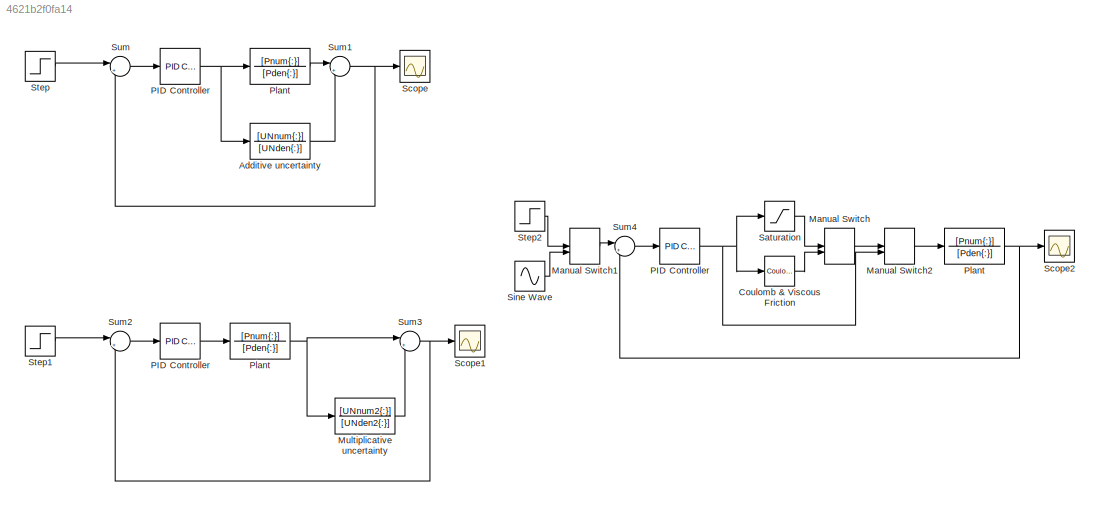
MODEL slx_4621b2f0fa14
KIND model
CONFIG AbsTol = auto
CONFIG EnableMultiTasking = off
CONFIG FixedStep = auto
CONFIG MaxStep = auto
CONFIG MinStep = auto
CONFIG RelTol = 1e-3
CONFIG SampleTimeConstraint = Unconstrained
CONFIG SolverName = VariableStepAuto
CONFIG StartTime = 0.0
CONFIG StopTime = 50
BLOCK [Reference]  PID Controller  REF=slpidlib/PID Controller
  LibrarySourceBlock = simulink/Continuous/PID Controller
  SourceBlock = slpidlib/PID Controller
  SourceType = PID 1dof
BLOCK [TransferFcn]  Plant
  Denominator = [Pden{:}]
  Numerator = [Pnum{:}]
BLOCK [TransferFcn] Additive uncertainty
  Commented = on
  Denominator = [UNden{:}]
  Numerator = [UNnum{:}]
BLOCK [Reference] Coulomb & Viscous Friction   REF=simulink/Discontinuities/Coulomb &
Viscous Friction
  SourceBlock = simulink/Discontinuities/Coulomb &\nViscous Friction
  SourceType = Coulombic and Viscous Friction
BLOCK [ManualSwitch] Manual Switch
  CurrentSetting = 0
BLOCK [ManualSwitch] Manual Switch1
  CurrentSetting = 0
BLOCK [ManualSwitch] Manual Switch2
  CurrentSetting = 0
BLOCK [TransferFcn] Multiplicative uncertainty
  Commented = on
  Denominator = [UNden2{:}]
  Numerator = [UNnum2{:}]
BLOCK [Reference] PID Controller   REF=slpidlib/PID Controller
  Commented = on
  LibrarySourceBlock = simulink/Continuous/PID Controller
  SourceBlock = slpidlib/PID Controller
  SourceType = PID 1dof
BLOCK [Reference] PID Controller    REF=slpidlib/PID Controller
  Commented = on
  LibrarySourceBlock = simulink/Continuous/PID Controller
  SourceBlock = slpidlib/PID Controller
  SourceType = PID 1dof
BLOCK [TransferFcn] Plant
  Commented = on
  Denominator = [Pden{:}]
  Numerator = [Pnum{:}]
BLOCK [TransferFcn] Plant 
  Commented = on
  Denominator = [Pden{:}]
  Numerator = [Pnum{:}]
BLOCK [Saturate] Saturation 
  LowerLimit = -1
  UpperLimit = 1
BLOCK [Scope] Scope
  Commented = on
  Floating = off
  NumInputPorts = 1
  ScopeSpecificationString = Simulink.scopes.TimeScopeBlockCfg('CurrentConfiguration', extmgr.ConfigurationSet(extmgr.Configuration('Core','General UI',true),extmgr.Configuration('Core','Source UI',true),extmgr.Configuration('Sources','WiredSimulink',true),extmgr.Configuration('Visuals','Time Domain',true,'SerializedDisplays',{struct('MinYLimReal','-0.18731','MaxYLimReal','1.68582','YLabelReal','','MinYLimMag','0.00000','MaxY...<+1353ch>
BLOCK [Scope] Scope1
  Commented = on
  Floating = off
  NumInputPorts = 1
  ScopeSpecificationString = Simulink.scopes.TimeScopeBlockCfg('CurrentConfiguration', extmgr.ConfigurationSet(extmgr.Configuration('Core','General UI',true),extmgr.Configuration('Core','Source UI',true),extmgr.Configuration('Sources','WiredSimulink',true,'DataLoggingVariableName','ScopeData1'),extmgr.Configuration('Visuals','Time Domain',true,'SerializedDisplays',{struct('MinYLimReal','-1.33072','MaxYLimReal','3.10321','YLab...<+1392ch>
BLOCK [Scope] Scope2
  Floating = off
  NumInputPorts = 1
  ScopeSpecificationString = Simulink.scopes.TimeScopeBlockCfg('CurrentConfiguration', extmgr.ConfigurationSet(extmgr.Configuration('Core','General UI',true),extmgr.Configuration('Core','Source UI',true),extmgr.Configuration('Sources','WiredSimulink',true,'DataLoggingVariableName','ScopeData2'),extmgr.Configuration('Visuals','Time Domain',true,'SerializedDisplays',{struct('MinYLimReal','-1.0391','MaxYLimReal','1.04084','YLabe...<+1410ch>
BLOCK [Sin] Sine Wave
  Frequency = 2
  SampleTime = 0
BLOCK [Step] Step
  Commented = on
  SampleTime = 0
  Time = 0
BLOCK [Step] Step1
  Commented = on
  SampleTime = 0
  Time = 0
BLOCK [Step] Step2
  SampleTime = 0
  Time = 0
BLOCK [Sum] Sum
  Commented = on
  Inputs = |+-
BLOCK [Sum] Sum1
  Commented = on
  Inputs = |++
BLOCK [Sum] Sum2
  Commented = on
  Inputs = |+-
BLOCK [Sum] Sum3
  Commented = on
  Inputs = |++
BLOCK [Sum] Sum4
  Inputs = |+-
NET  PID Controller:1 -> Coulomb & Viscous Friction :1, Manual Switch2:2, Saturation :1
NET  Plant:1 -> Scope2:1, Sum4:2
LINE Additive uncertainty:1 -> Sum1:2
LINE Coulomb & Viscous Friction :1 -> Manual Switch:2
LINE Manual Switch1:1 -> Sum4:1
LINE Manual Switch2:1 ->  Plant:1
LINE Manual Switch:1 -> Manual Switch2:1
LINE Multiplicative uncertainty:1 -> Sum3:2
LINE PID Controller  :1 -> Plant :1
NET PID Controller :1 -> Additive uncertainty:1, Plant:1
NET Plant :1 -> Multiplicative uncertainty:1, Sum3:1
LINE Plant:1 -> Sum1:1
LINE Saturation :1 -> Manual Switch:1
LINE Sine Wave:1 -> Manual Switch1:2
LINE Step1:1 -> Sum2:1
LINE Step2:1 -> Manual Switch1:1
LINE Step:1 -> Sum:1
NET Sum1:1 -> Scope:1, Sum:2
LINE Sum2:1 -> PID Controller  :1
NET Sum3:1 -> Scope1:1, Sum2:2
LINE Sum4:1 ->  PID Controller:1
LINE Sum:1 -> PID Controller :1
note: NET lines group one-source signal fan-out (src -> all destinations, sorted); 1:1 wires keep LINE
